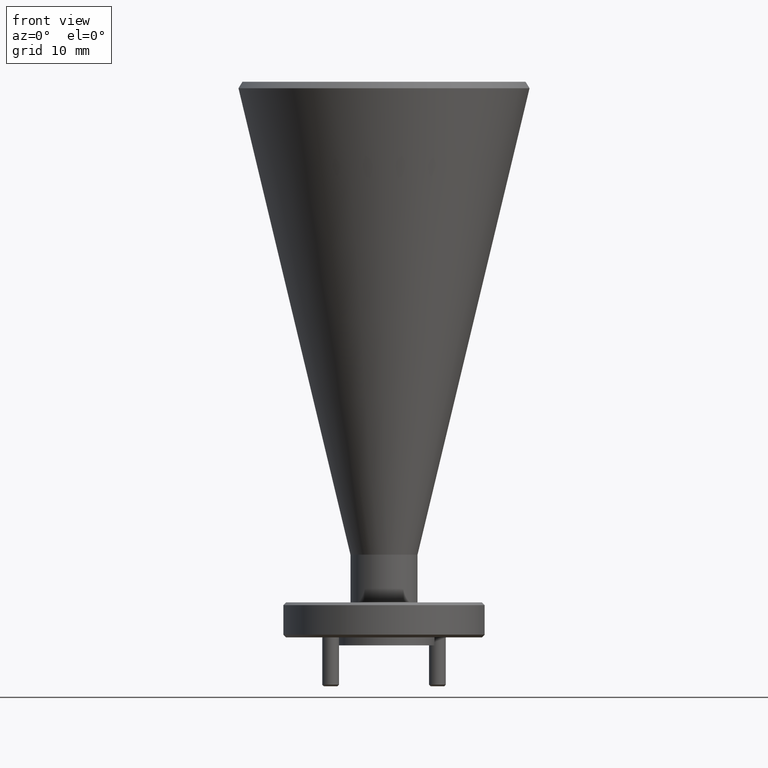
[diagram: clean part render]
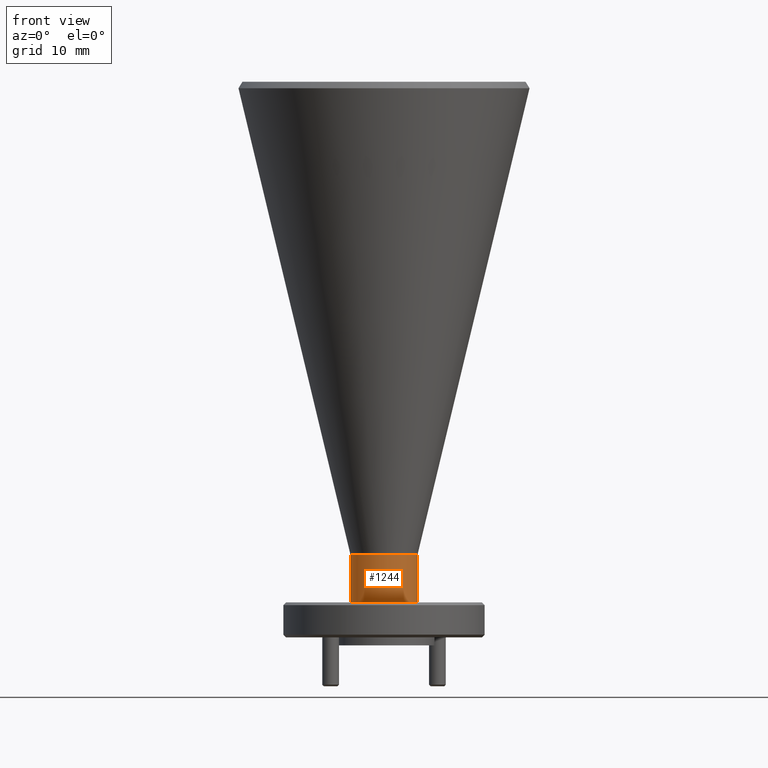
[diagram: same view with one face highlighted and labeled with its STEP entity id]
A machine part, front view. The second image highlights one B-rep face of the part: STEP entity #1244.
In plain terms, the highlighted cylindrical surface (edge-blend (fillet) strip) has radius 3.175 mm, axis along (-0, -0, 1).
Its self-contained STEP definition (entity closure, byte-faithful):
#30 = DIRECTION ( 'NONE',  ( -0.0000000000000000000, -0.0000000000000000000, 1.000000000000000000 ) ) ;
#54 = AXIS2_PLACEMENT_3D ( 'NONE', #573, #1686, #881 ) ;
#61 = ORIENTED_EDGE ( 'NONE', *, *, #1717, .F. ) ;
#129 = EDGE_CURVE ( 'NONE', #1000, #1736, #2037, .T. ) ;
#292 = DIRECTION ( 'NONE',  ( 1.000000000000000000, 0.0000000000000000000, 0.0000000000000000000 ) ) ;
#307 = CARTESIAN_POINT ( 'NONE',  ( -2.186298195062089400, 1.143924960471874900, 4.395099635446578100 ) ) ;
#325 = CARTESIAN_POINT ( 'NONE',  ( -1.936298195062089700, 1.143924960471874900, -0.4013685743280536700 ) ) ;
#349 = VERTEX_POINT ( 'NONE', #1880 ) ;
#373 = CARTESIAN_POINT ( 'NONE',  ( -2.186298195062089400, 1.143924960471874900, -0.5794467715797532200 ) ) ;
#465 = CARTESIAN_POINT ( 'NONE',  ( -2.061298195062089400, 1.143924960471874900, 4.395099635446578100 ) ) ;
#571 = CYLINDRICAL_SURFACE ( 'NONE', #1648, 0.1249999999999999000 ) ;
#573 = CARTESIAN_POINT ( 'NONE',  ( -2.061298195062089400, 1.143924960471874900, -0.5794467715797532200 ) ) ;
#881 = DIRECTION ( 'NONE',  ( 1.000000000000000000, 0.0000000000000000000, 0.0000000000000000000 ) ) ;
#893 = LINE ( 'NONE', #1449, #1366 ) ;
#924 = ORIENTED_EDGE ( 'NONE', *, *, #1547, .T. ) ;
#1000 = VERTEX_POINT ( 'NONE', #2042 ) ;
#1048 = VECTOR ( 'NONE', #1123, 39.37007874015748100 ) ;
#1060 = EDGE_CURVE ( 'NONE', #349, #1736, #893, .T. ) ;
#1123 = DIRECTION ( 'NONE',  ( -0.0000000000000000000, -0.0000000000000000000, 1.000000000000000000 ) ) ;
#1244 = ADVANCED_FACE ( 'NONE', ( #1968 ), #571, .T. ) ;
#1261 = DIRECTION ( 'NONE',  ( -0.0000000000000000000, -0.0000000000000000000, 1.000000000000000000 ) ) ;
#1281 = LINE ( 'NONE', #307, #1048 ) ;
#1291 = DIRECTION ( 'NONE',  ( -0.0000000000000000000, -0.0000000000000000000, 1.000000000000000000 ) ) ;
#1309 = CARTESIAN_POINT ( 'NONE',  ( -2.061298195062089400, 1.143924960471874900, -0.4013685743280536700 ) ) ;
#1366 = VECTOR ( 'NONE', #1291, 39.37007874015748100 ) ;
#1449 = CARTESIAN_POINT ( 'NONE',  ( -1.936298195062089700, 1.143924960471874900, 4.395099635446578100 ) ) ;
#1547 = EDGE_CURVE ( 'NONE', #1863, #349, #1612, .T. ) ;
#1612 = CIRCLE ( 'NONE', #54, 0.1249999999999999000 ) ;
#1648 = AXIS2_PLACEMENT_3D ( 'NONE', #465, #1261, #292 ) ;
#1686 = DIRECTION ( 'NONE',  ( -0.0000000000000000000, -0.0000000000000000000, 1.000000000000000000 ) ) ;
#1699 = ORIENTED_EDGE ( 'NONE', *, *, #1060, .T. ) ;
#1717 = EDGE_CURVE ( 'NONE', #1863, #1000, #1281, .T. ) ;
#1721 = ORIENTED_EDGE ( 'NONE', *, *, #129, .F. ) ;
#1736 = VERTEX_POINT ( 'NONE', #325 ) ;
#1863 = VERTEX_POINT ( 'NONE', #373 ) ;
#1865 = EDGE_LOOP ( 'NONE', ( #61, #924, #1699, #1721 ) ) ;
#1880 = CARTESIAN_POINT ( 'NONE',  ( -1.936298195062089700, 1.143924960471874900, -0.5794467715797532200 ) ) ;
#1957 = DIRECTION ( 'NONE',  ( 1.000000000000000000, 0.0000000000000000000, 0.0000000000000000000 ) ) ;
#1968 = FACE_OUTER_BOUND ( 'NONE', #1865, .T. ) ;
#2037 = CIRCLE ( 'NONE', #2083, 0.1249999999999999000 ) ;
#2042 = CARTESIAN_POINT ( 'NONE',  ( -2.186298195062089400, 1.143924960471874900, -0.4013685743280536700 ) ) ;
#2083 = AXIS2_PLACEMENT_3D ( 'NONE', #1309, #30, #1957 ) ;